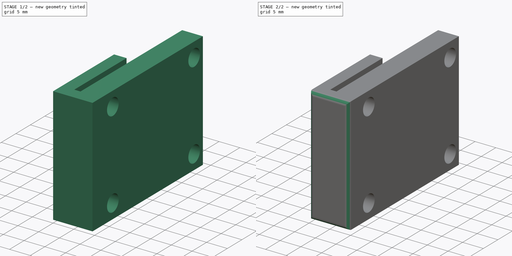
[diagram: build sequence overview — one tinted view per stage of 2, left to right]
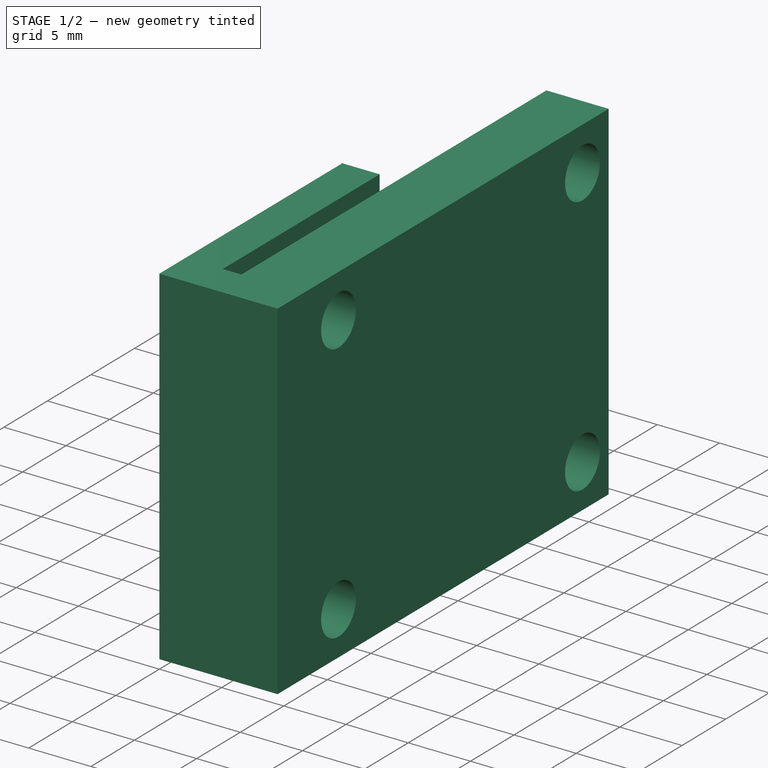
[diagram: stage 1 of 2 — iso view after this stage's code; geometry added in this stage tinted green]
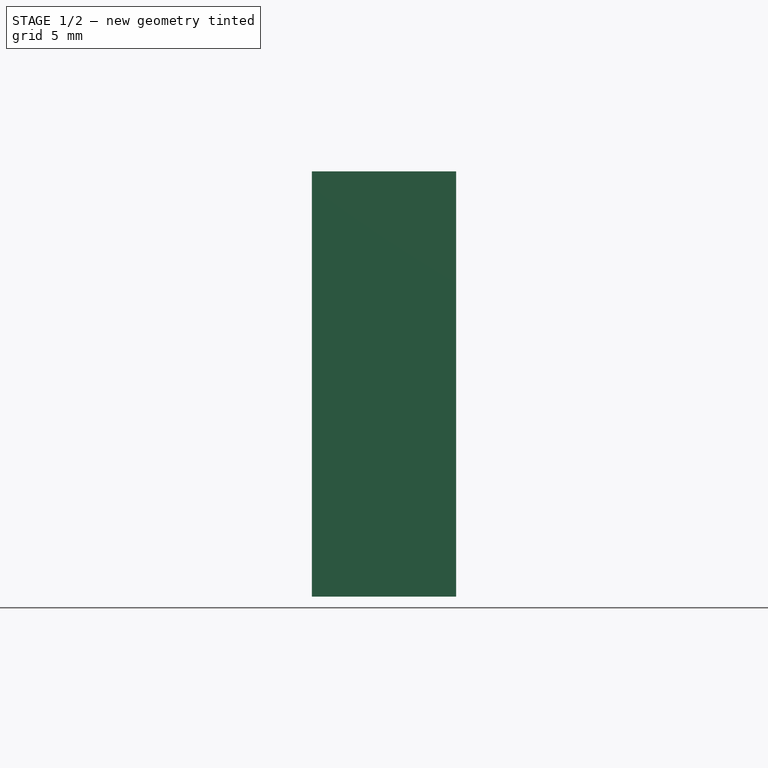
[diagram: stage 1 of 2 — front view after this stage's code; geometry added in this stage tinted green]
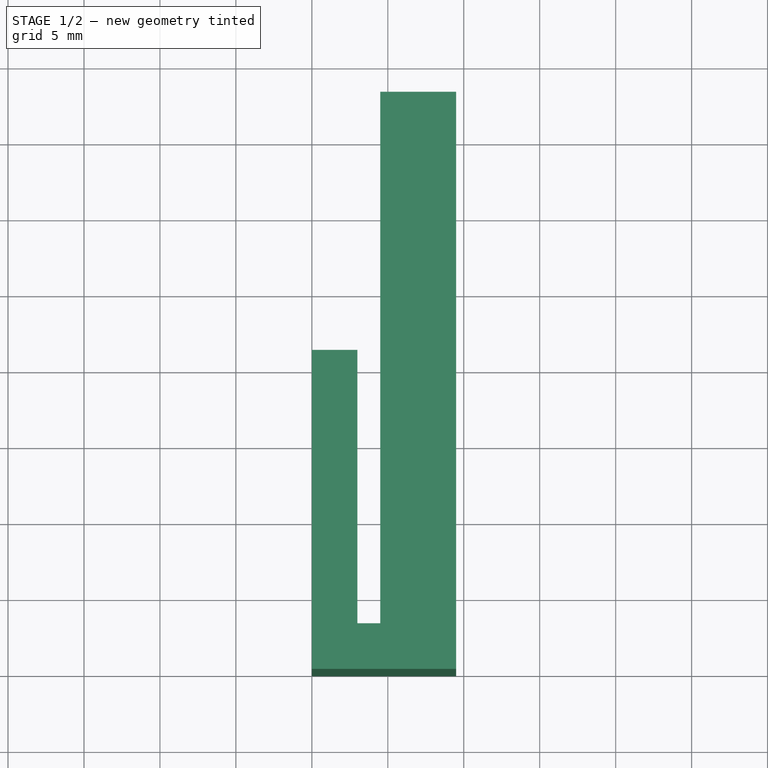
[diagram: stage 1 of 2 — top view after this stage's code; geometry added in this stage tinted green]
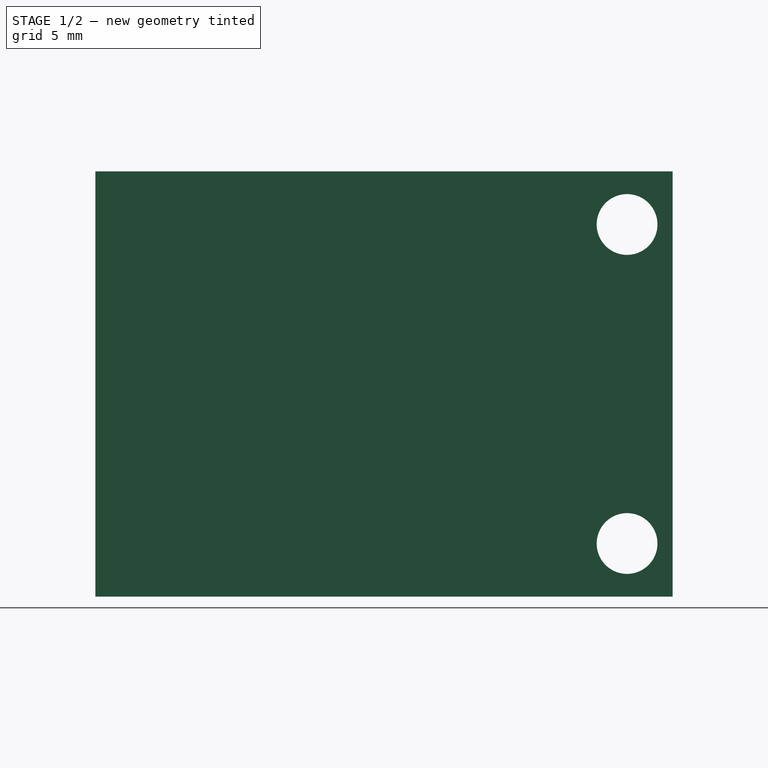
[diagram: stage 1 of 2 — right view after this stage's code; geometry added in this stage tinted green]
FCSTD DOCUMENT  (FreeCAD 0.19R24291 (Git))
Label: relay mount
License: All rights reserved
LicenseURL: http://en.wikipedia.org/wiki/All_rights_reserved
objects: Sketcher::SketchObject×2, PartDesign::Pad×1, PartDesign::Pocket×1, PartDesign::Fillet×1, PartDesign::Body×1
note: 9 computed .brp shape members not serialized (recipe doc carries the construction recipe); baked Part::Feature solids carry a one-line shape summary decoded from their .brp

FEATURE [Sketcher::SketchObject] Sketch
  FullyConstrained = true
  MapMode = 5
  Support = -> [XY_Plane]
  sketch-geometry (8):
    g0: LineSegment StartX=0 StartY=0 StartZ=0 EndX=0 EndY=21 EndZ=0
    g1: LineSegment StartX=0 StartY=21 StartZ=0 EndX=3 EndY=21 EndZ=0
    g2: LineSegment StartX=3 StartY=21 StartZ=0 EndX=3 EndY=3 EndZ=0
    g3: LineSegment StartX=3 StartY=3 StartZ=0 EndX=4.5 EndY=3 EndZ=0
    g4: LineSegment StartX=4.5 StartY=3 StartZ=0 EndX=4.5 EndY=38 EndZ=0
    g5: LineSegment StartX=4.5 StartY=38 StartZ=0 EndX=9.5 EndY=38 EndZ=0
    g6: LineSegment StartX=9.5 StartY=38 StartZ=0 EndX=9.5 EndY=0 EndZ=0
    g7: LineSegment StartX=9.5 StartY=0 StartZ=0 EndX=0 EndY=0 EndZ=0
  constraints (23):
    c: Coincident(g-1,g0)
    c: PointOnObject(g0,g-2)
    c: Coincident(g0,g1)
    c: Horizontal(g1)
    c: Coincident(g1,g2)
    c: Vertical(g2)
    c: Coincident(g2,g3)
    c: Horizontal(g3)
    c: Coincident(g3,g4)
    c: Vertical(g4)
    c: Coincident(g4,g5)
    c: Coincident(g5,g6)
    c: PointOnObject(g6,g-1)
    c: Vertical(g6)
    c: Coincident(g6,g7)
    c: Coincident(g7,g0)
    c: DistanceY(g0,g0) = 21
    c: DistanceX(g1,g1) = 3
    c: DistanceX(g3,g3) = 1.5
    c: DistanceY(g2,g2) = 18
    c: DistanceX(g3,g6) = 5
    c: DistanceY(g6,g6) = 38
    c: Horizontal(g5)
FEATURE [PartDesign::Pad] Pad
  Direction = (1,1,1)
  Length = 28
  Length2 = 100
  Profile = -> Sketch
  Type = 0
FEATURE [Sketcher::SketchObject] Sketch001
  FullyConstrained = true
  MapMode = 5
  Placement = pos=(9.5,0,0) rot=(0.57735,0.57735,0.57735;2.0944rad)
  Support = -> [Pad]
  sketch-geometry (7):
    g0: Circle CenterX=7 CenterY=24.5 CenterZ=0 NormalX=0 NormalY=0 NormalZ=1 AngleXU=0 Radius=2
    g1: Circle CenterX=35 CenterY=24.5 CenterZ=0 NormalX=0 NormalY=0 NormalZ=1 AngleXU=0 Radius=2
    g2: LineSegment StartX=7 StartY=24.5 StartZ=0 EndX=35 EndY=24.5 EndZ=0
    g3: Circle CenterX=7 CenterY=3.5 CenterZ=0 NormalX=0 NormalY=0 NormalZ=1 AngleXU=0 Radius=2
    g4: LineSegment StartX=7 StartY=24.5 StartZ=0 EndX=7 EndY=3.5 EndZ=0
    g5: Circle CenterX=35 CenterY=3.5 CenterZ=0 NormalX=0 NormalY=0 NormalZ=1 AngleXU=0 Radius=2
    g6: LineSegment StartX=7 StartY=3.5 StartZ=0 EndX=35 EndY=3.5 EndZ=0
  constraints (18):
    c: Radius(g0) = 2
    c: Radius(g1) = 2
    c: Coincident(g0,g2)
    c: Coincident(g1,g2)
    c: Distance(g2) = 28
    c: Angle(g2) = 0
    c: Radius(g3) = 2
    c: Coincident(g0,g4)
    c: Coincident(g3,g4)
    c: Distance(g4) = 21
    c: Perpendicular(g4,g2)
    c: Radius(g5) = 2
    c: Coincident(g3,g6)
    c: Coincident(g5,g6)
    c: Equal(g2,g6)
    c: Parallel(g6,g2)
    c: DistanceY(g-1,g3) = 3.5
    c: DistanceX(g-1,g3) = 7
FEATURE [PartDesign::Pocket] Pocket
  BaseFeature = -> Pad
  Length = 5
  Length2 = 100
  Profile = -> Sketch001
  Type = 0
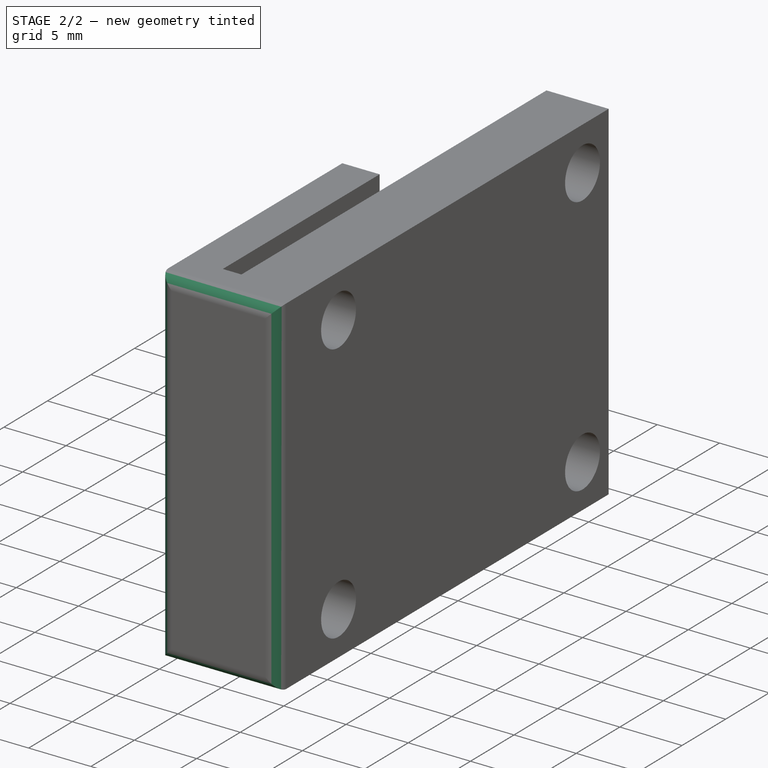
[diagram: stage 2 of 2 — iso view after this stage's code; geometry added in this stage tinted green]
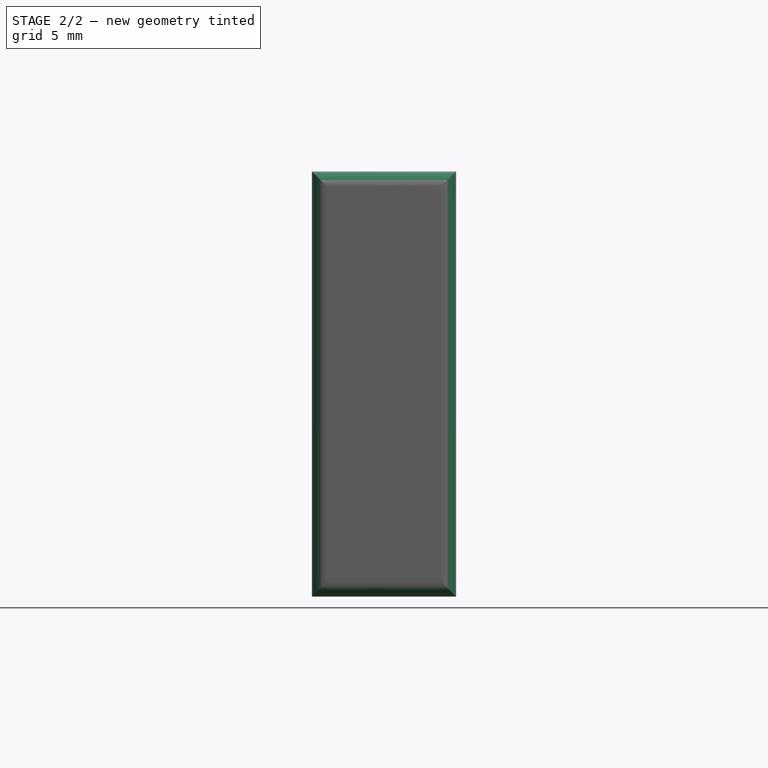
[diagram: stage 2 of 2 — front view after this stage's code; geometry added in this stage tinted green]
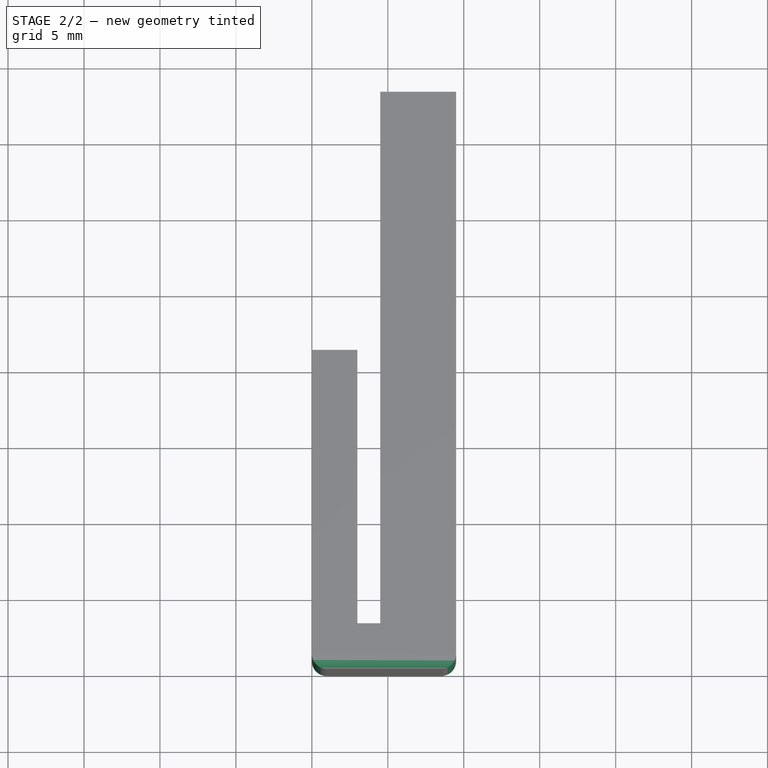
[diagram: stage 2 of 2 — top view after this stage's code; geometry added in this stage tinted green]
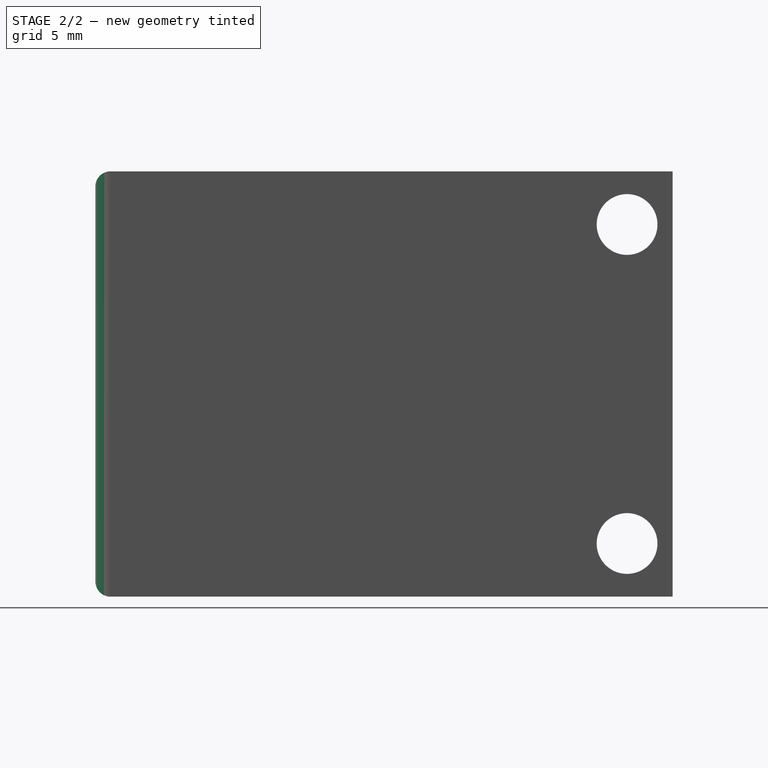
[diagram: stage 2 of 2 — right view after this stage's code; geometry added in this stage tinted green]
FEATURE [PartDesign::Fillet] Fillet
  Base = -> Pocket [Face2]
  BaseFeature = -> Pocket
  Radius = 1
  SupportTransform = false
FEATURE [PartDesign::Body] Body
  Group = -> [Sketch,Pad,Sketch001,Pocket,Fillet]
  Origin = -> Origin
  Tip = -> Fillet
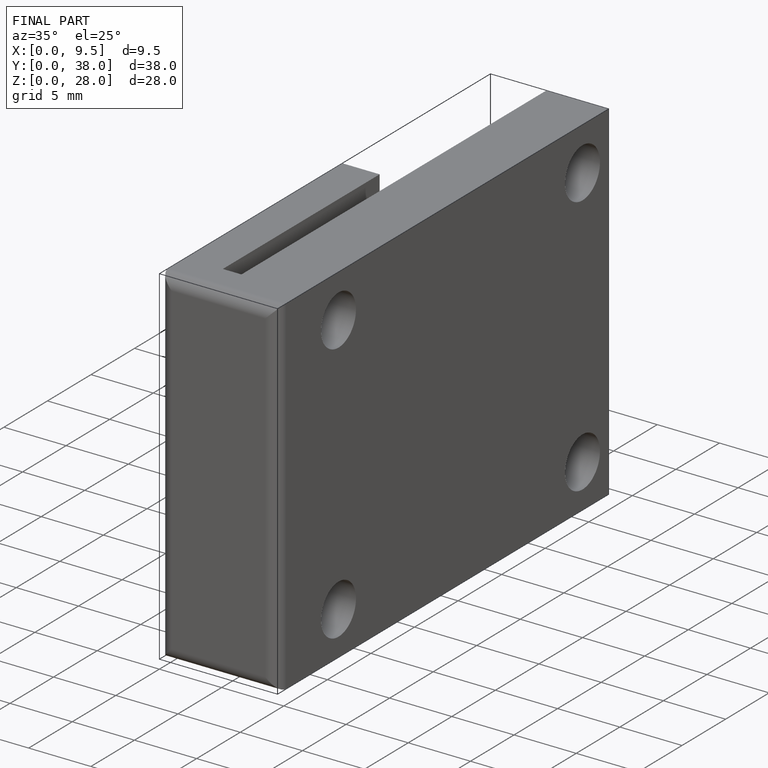
[diagram: finished part — iso view with bounding-box wireframe]
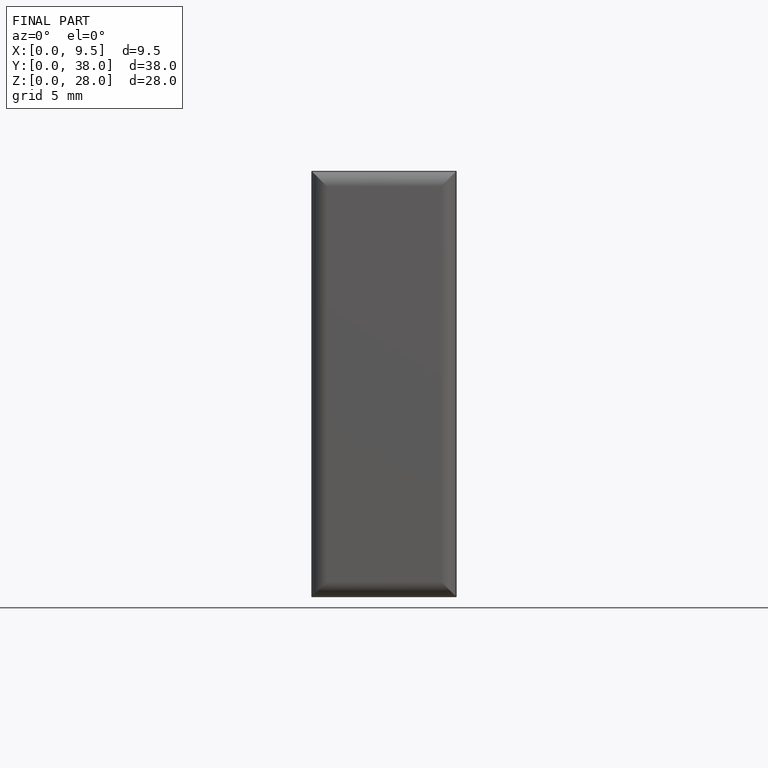
[diagram: finished part — front view with bounding-box wireframe]
